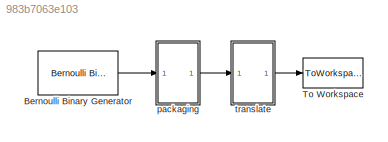
MODEL slx_983b7063e103
KIND model
BLOCK [Reference] Bernoulli Binary Generator  REF=commrandsrc2/Bernoulli Binary
Generator
  P = 0.5
  Ports = [0, 1]
  SourceBlock = commrandsrc2/Bernoulli Binary\nGenerator
  SourceType = Bernoulli Binary Generator
  Ts = 0.00015625
  frameBased = on
  orient = off
  outDataType = double
  sampPerFrame = 64
  seed = 61
BLOCK [ToWorkspace] To Workspace
  MaxDataPoints = inf
  Ports = [1]
  SampleTime = -1
  SaveFormat = Timeseries
  VariableName = received
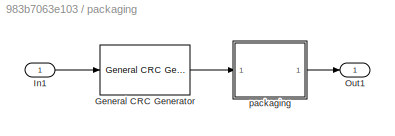
BLOCK [SubSystem] packaging
  FunctionWithSeparateData = off
  MaskHideContents = off
  MinAlgLoopOccurrences = off
  Opaque = off
  Ports = [1, 1]
  PropExecContextOutsideSubsystem = off
  RTWSystemCode = Auto
  RequestExecContextInheritance = off
BLOCK [Reference] packaging/General CRC Generator  REF=commcrc2/General CRC
Generator
  Ports = [1, 1]
  SourceBlock = commcrc2/General CRC\nGenerator
  SourceType = General CRC Generator
  directMethod = off
  finalXOR = 0
  genPoly = [1 0 0 0 1 0 0 0 0 0 0 1 0 0 0 0 1]
  iniStates = 0
  numChecksums = 1
  reflectChecksums = off
  reflectInputBytes = off
BLOCK [Inport] packaging/In1
  IconDisplay = Port number
BLOCK [Outport] packaging/Out1
  IconDisplay = Port number
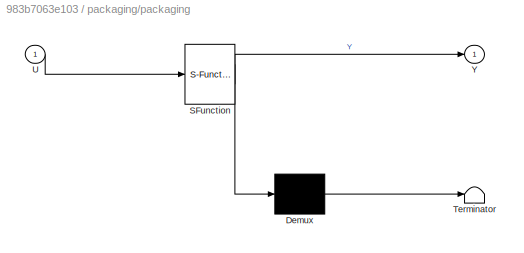
BLOCK [SubSystem] packaging/packaging
  ErrorFcn = Stateflow.Translate.translate
  FunctionWithSeparateData = off
  MaskHideContents = off
  MinAlgLoopOccurrences = off
  Opaque = off
  PermitHierarchicalResolution = ExplicitOnly
  Ports = [1, 1]
  PropExecContextOutsideSubsystem = off
  RTWSystemCode = Auto
  RequestExecContextInheritance = off
  SFBlockType = MATLAB Function
  SystemSampleTime = 0.01
  TreatAsAtomicUnit = on
BLOCK [Demux] packaging/packaging/ Demux 
  Outputs = 1
  Ports = [1, 1]
BLOCK [S-Function] packaging/packaging/ SFunction 
  EnableBusSupport = on
  FunctionName = sf_sfun
  PortCounts = [1 2]
  Ports = [1, 2]
  Tag = Stateflow S-Function parallelreceiver 2
BLOCK [Terminator] packaging/packaging/ Terminator 
BLOCK [Inport] packaging/packaging/U
  IconDisplay = Port number
BLOCK [Outport] packaging/packaging/Y
  IconDisplay = Port number
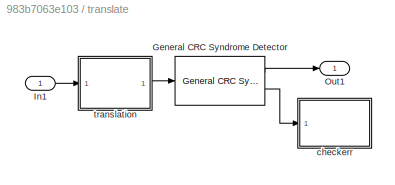
BLOCK [SubSystem] translate
  FunctionWithSeparateData = off
  MaskHideContents = off
  MinAlgLoopOccurrences = off
  Opaque = off
  Ports = [1, 1]
  PropExecContextOutsideSubsystem = off
  RTWSystemCode = Auto
  RequestExecContextInheritance = off
BLOCK [Reference] translate/General CRC Syndrome Detector  REF=commcrc2/General CRC
Syndrome
Detector
  Ports = [1, 2]
  SourceBlock = commcrc2/General CRC\nSyndrome\nDetector
  SourceType = General CRC Syndrome Detector
  directMethod = off
  finalXOR = 0
  genPoly = [1 0 0 0 1 0 0 0 0 0 0 1 0 0 0 0 1]
  iniStates = 0
  numChecksums = 1
  reflectChecksums = off
  reflectInputBytes = off
BLOCK [Inport] translate/In1
  IconDisplay = Port number
BLOCK [Outport] translate/Out1
  IconDisplay = Port number
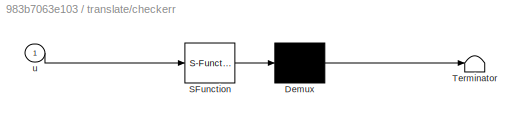
BLOCK [SubSystem] translate/checkerr
  ErrorFcn = Stateflow.Translate.translate
  FunctionWithSeparateData = off
  MaskHideContents = off
  MinAlgLoopOccurrences = off
  Opaque = off
  PermitHierarchicalResolution = ExplicitOnly
  Ports = [1]
  PropExecContextOutsideSubsystem = off
  RTWSystemCode = Auto
  RequestExecContextInheritance = off
  SFBlockType = MATLAB Function
  TreatAsAtomicUnit = on
BLOCK [Demux] translate/checkerr/ Demux 
  Outputs = 1
  Ports = [1, 1]
BLOCK [S-Function] translate/checkerr/ SFunction 
  EnableBusSupport = on
  FunctionName = sf_sfun
  PortCounts = [1 1]
  Ports = [1, 1]
  Tag = Stateflow S-Function parallelreceiver 4
BLOCK [Terminator] translate/checkerr/ Terminator 
BLOCK [Inport] translate/checkerr/u
  IconDisplay = Port number
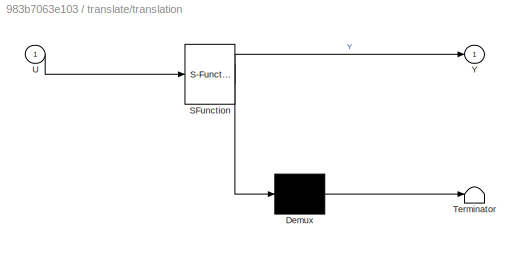
BLOCK [SubSystem] translate/translation
  ErrorFcn = Stateflow.Translate.translate
  FunctionWithSeparateData = off
  MaskHideContents = off
  MinAlgLoopOccurrences = off
  Opaque = off
  PermitHierarchicalResolution = ExplicitOnly
  Ports = [1, 1]
  PropExecContextOutsideSubsystem = off
  RTWSystemCode = Auto
  RequestExecContextInheritance = off
  SFBlockType = MATLAB Function
  SystemSampleTime = 0.01
  TreatAsAtomicUnit = on
BLOCK [Demux] translate/translation/ Demux 
  Outputs = 1
  Ports = [1, 1]
BLOCK [S-Function] translate/translation/ SFunction 
  EnableBusSupport = on
  FunctionName = sf_sfun
  PortCounts = [1 2]
  Ports = [1, 2]
  Tag = Stateflow S-Function parallelreceiver 3
BLOCK [Terminator] translate/translation/ Terminator 
BLOCK [Inport] translate/translation/U
  IconDisplay = Port number
BLOCK [Outport] translate/translation/Y
  IconDisplay = Port number
LINE Bernoulli Binary Generator:1 -> packaging:1
LINE packaging/General CRC Generator:1 -> packaging/packaging:1
LINE packaging/In1:1 -> packaging/General CRC Generator:1
LINE packaging/packaging:1 -> packaging/Out1:1
LINE packaging:1 -> translate:1
LINE translate/General CRC Syndrome Detector:1 -> translate/Out1:1
LINE translate/General CRC Syndrome Detector:2 -> translate/checkerr:1
LINE translate/In1:1 -> translate/translation:1
LINE translate/translation:1 -> translate/General CRC Syndrome Detector:1
LINE translate:1 -> To Workspace:1
